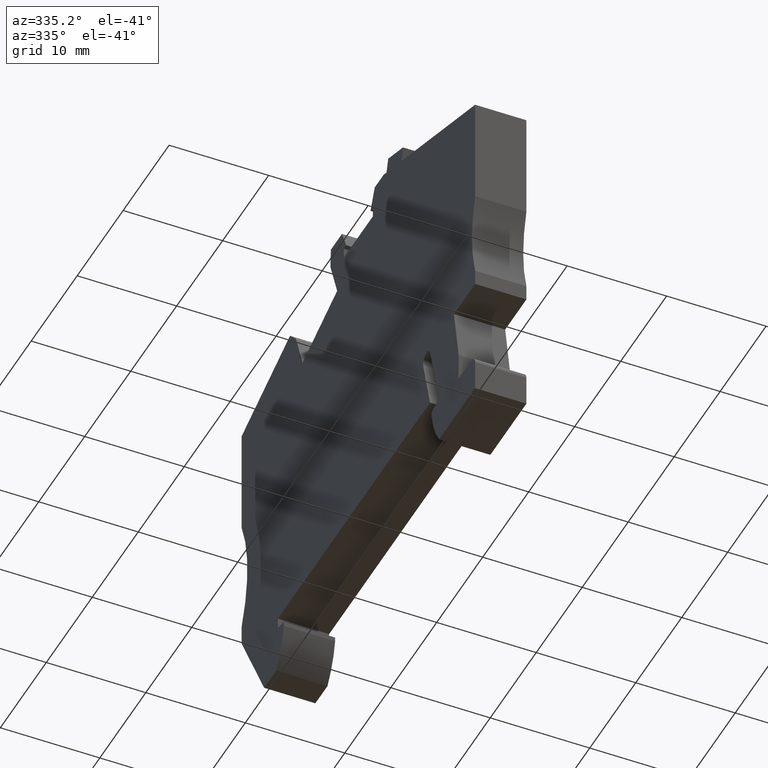
[diagram: clean part render]
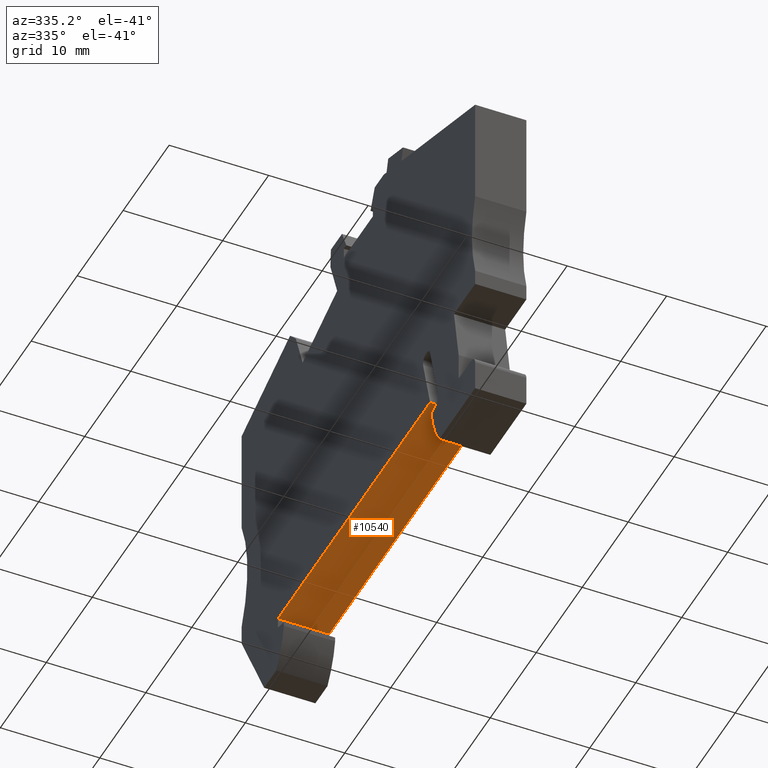
[diagram: same view with one face highlighted and labeled with its STEP entity id]
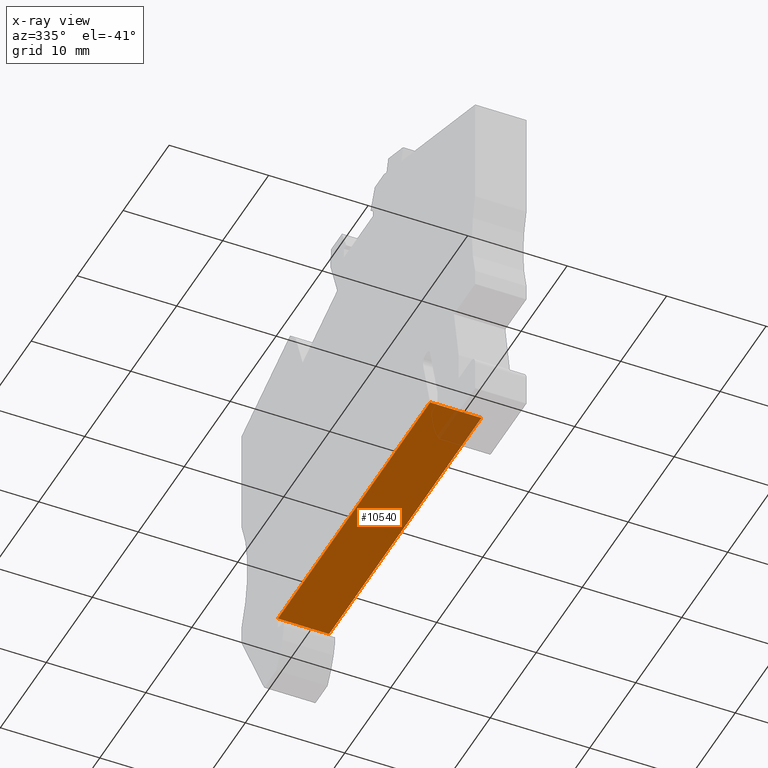
[diagram: x-ray of the same camera — body ghosted, the highlighted face saturated]
A machine part, auxiliary view. The second image highlights one B-rep face of the part: STEP entity #10540.
The next image is the same camera in x-ray: the body ghosted, the highlighted face saturated — about 7% of this face is hidden behind the body in this view.
In plain terms, the highlighted planar face has unit normal (0, 0, -1).
Its self-contained STEP definition (entity closure, byte-faithful):
#10150=CARTESIAN_POINT('',(-32.4483873135778,0.,0.));
#10160=DIRECTION('',(-0.,-1.,-0.));
#10170=DIRECTION('',(-1.,0.,0.));
#10180=AXIS2_PLACEMENT_3D('',#10150,#10160,#10170);
#10190=PLANE('',#10180);
#10200=CARTESIAN_POINT('',(0.,0.,-1.41857366902207E-10));
#10210=DIRECTION('',(-1.,0.,8.29257937772377E-14));
#10220=VECTOR('',#10210,1.);
#10230=LINE('',#10200,#10220);
#10240=CARTESIAN_POINT('',(0.,0.,-1.41857366902207E-10));
#10250=VERTEX_POINT('',#10240);
#10260=CARTESIAN_POINT('',(-33.0999999999996,0.,-1.3911252312818E-10));
#10270=VERTEX_POINT('',#10260);
#10280=EDGE_CURVE('',#10250,#10270,#10230,.T.);
#10290=ORIENTED_EDGE('',*,*,#10280,.T.);
#10300=CARTESIAN_POINT('',(0.,0.,0.));
#10310=DIRECTION('',(0.,0.,-1.));
#10320=VECTOR('',#10310,1.);
#10330=LINE('',#10300,#10320);
#10340=CARTESIAN_POINT('',(0.,0.,-5.15000000000269));
#10350=VERTEX_POINT('',#10340);
#10360=EDGE_CURVE('',#10250,#10350,#10330,.T.);
#10370=ORIENTED_EDGE('',*,*,#10360,.F.);
#10380=CARTESIAN_POINT('',(0.,0.,-5.15000000000269));
#10390=DIRECTION('',(-1.,0.,0.));
#10400=VECTOR('',#10390,1.);
#10410=LINE('',#10380,#10400);
#10420=CARTESIAN_POINT('',(-33.0999999999996,0.,-5.15000000000269));
#10430=VERTEX_POINT('',#10420);
#10440=EDGE_CURVE('',#10350,#10430,#10410,.T.);
#10450=ORIENTED_EDGE('',*,*,#10440,.F.);
#10460=CARTESIAN_POINT('',(-33.0999999999996,0.,0.));
#10470=DIRECTION('',(0.,0.,1.));
#10480=VECTOR('',#10470,1.);
#10490=LINE('',#10460,#10480);
#10500=EDGE_CURVE('',#10430,#10270,#10490,.T.);
#10510=ORIENTED_EDGE('',*,*,#10500,.F.);
#10520=EDGE_LOOP('',(#10510,#10450,#10370,#10290));
#10530=FACE_OUTER_BOUND('',#10520,.T.);
#10540=ADVANCED_FACE('',(#10530),#10190,.T.);